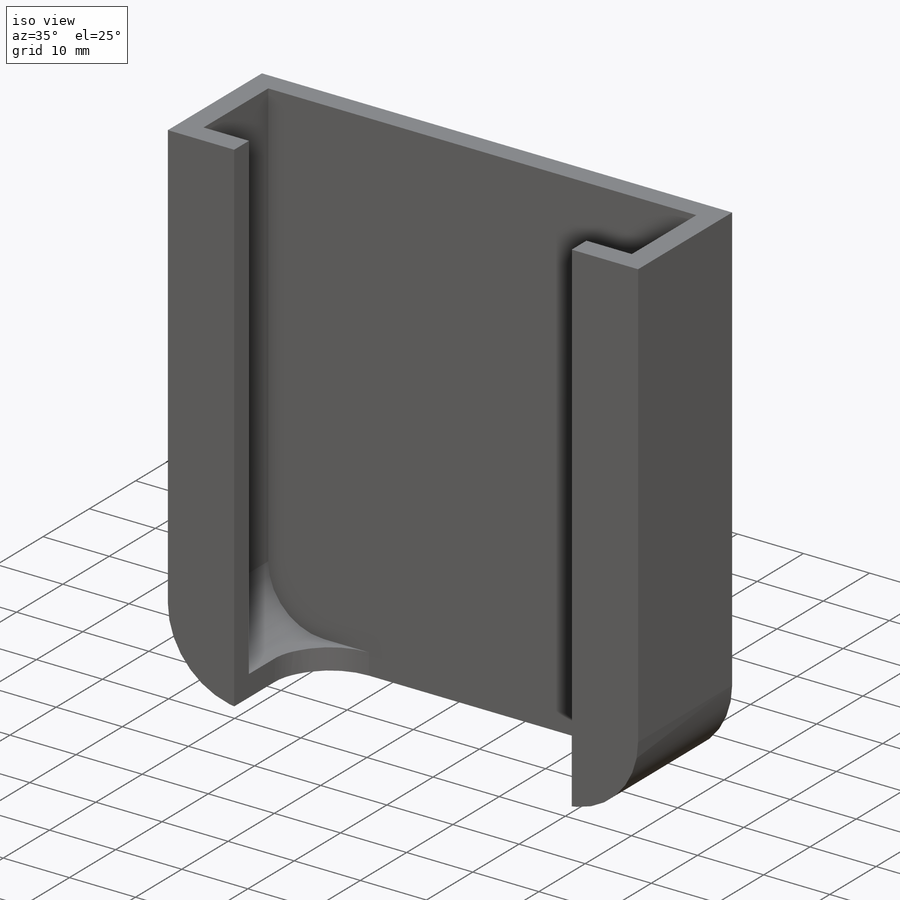
[diagram: iso view]
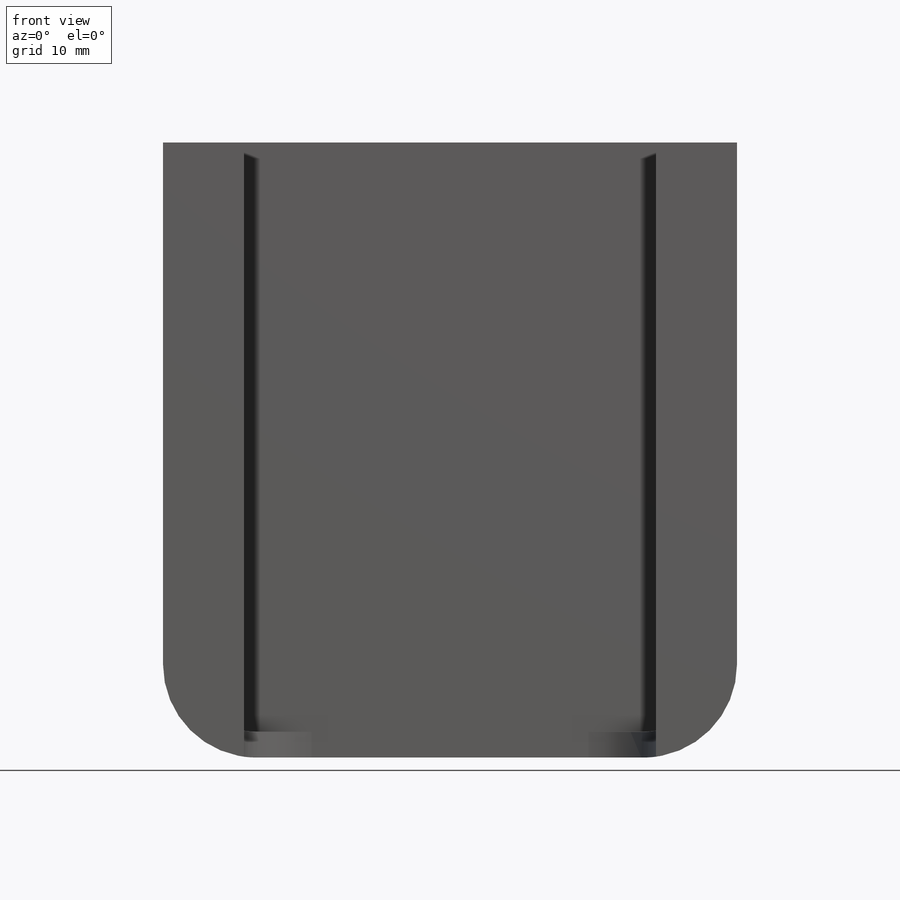
[diagram: front view]
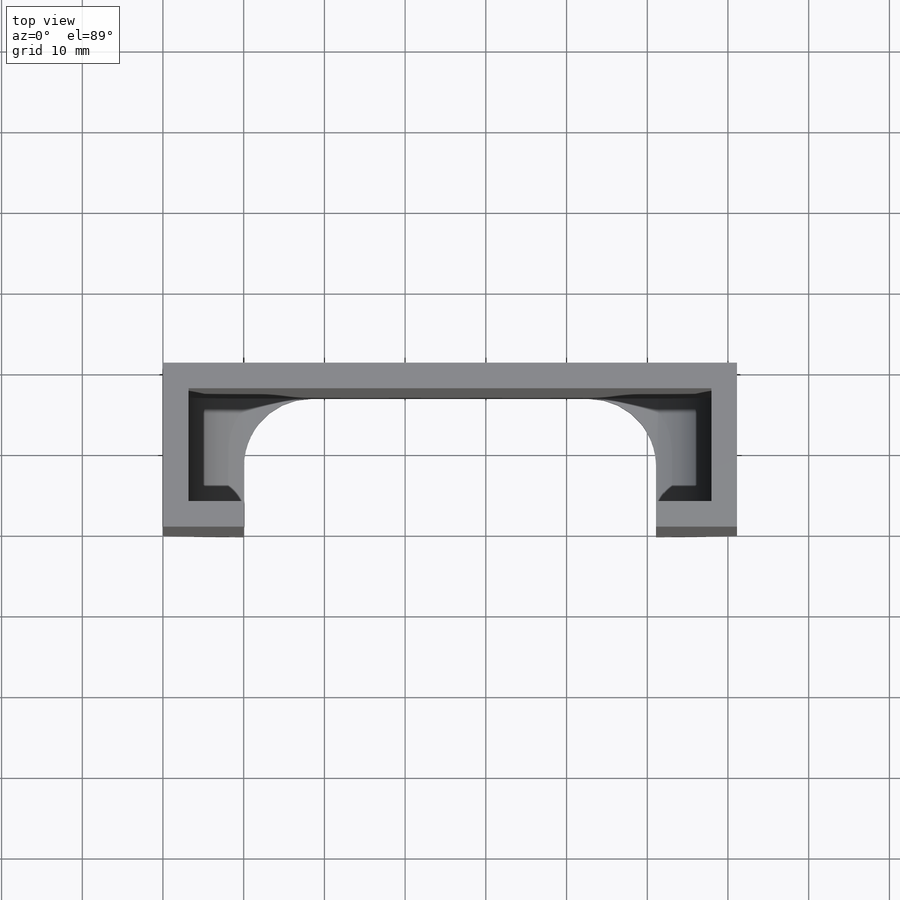
[diagram: top view]
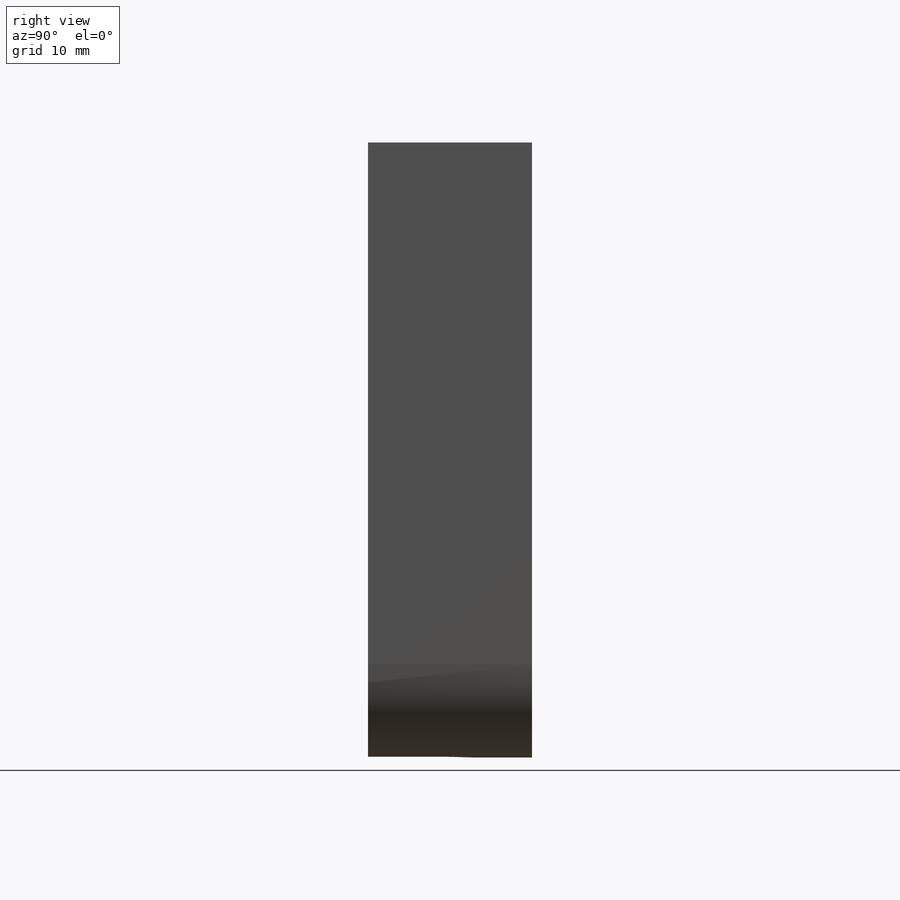
[diagram: right view]
SOLIDWORKS PART (.sldprt)
format: sldprt  version: not decoded by parser v0  size: 272,896 bytes
history: native  units: mm
features: sketch x6, cut_extrude x3, fillet x2, material x1, extrude x1, hole x1 (+12 scaffold rows collapsed)
feature tree (26):
  scaffold x12  (default folders/planes/origin — collapsed)
  material  "Material <not specified>"
  sketch  "Sketch1"  dims[c1.D1=76.2mm c1.D2=76.2mm c2.D1=71.12mm c2.D2=76.2mm]
  extrude  "Boss-Extrude1"  Depth=20.32mm
  sketch  "Sketch2"  dims[c1.D1=3.175mm c1.D2=3.175mm c1.D3=3.175mm c1.D4=3.175mm c1.D5=3.175mm c1.D6=50.8mm c1.D7=3.175mm c2.D4=3.175mm]
  cut_extrude  "Cut-Extrude1"  Depth=3.175mm
  hole  "CSK for 1/4 Flat Head Socket Cap Screw1"  Diameter=6.858mm Depth=3.175mm
  sketch  "Sketch8"  dims[c1.D1=22.225mm c1.D2=22.225mm c2.D1=~19.745895mm c2.D2=12.7mm c2.D3=38.1mm]
  sketch  "Sketch9"  dims[hole-wizard template sketch: 54 standard entries collapsed; hole parameters kept: c17.Thru Hole Dia.=6.858mm c17.Thru Hole Depth=3.175mm c17.Near C'Sink Dia.=~13.929004mm c17.D4=~3.666174mm c17.Near C'Sink Angle=82.0deg]
  sketch  "Sketch10"  dims[c1.D1=20.32mm c1.D2=~49.762374mm c2.D1=17.145mm c2.D2=~44.956668mm c3.D1=51.054mm c3.D2=~38.429252mm]
  cut_extrude  "Cut-Extrude2"  [1 undecoded]
  fillet  "Fillet5"  Radius=8.382mm
  fillet  "Fillet3"  Radius=8.382mm
  sketch  "Sketch11"  dims[D1=~102.908774mm]
  cut_extrude  "Cut-Extrude3"  [1 undecoded]
decode coverage: 11 of 13 modeling features carry decoded parameters
note: ~ marks probable driven/reference dimensions
note: 2 parameter values undecoded
note: suppression state not decoded; provenance and decode notes live in map.json
